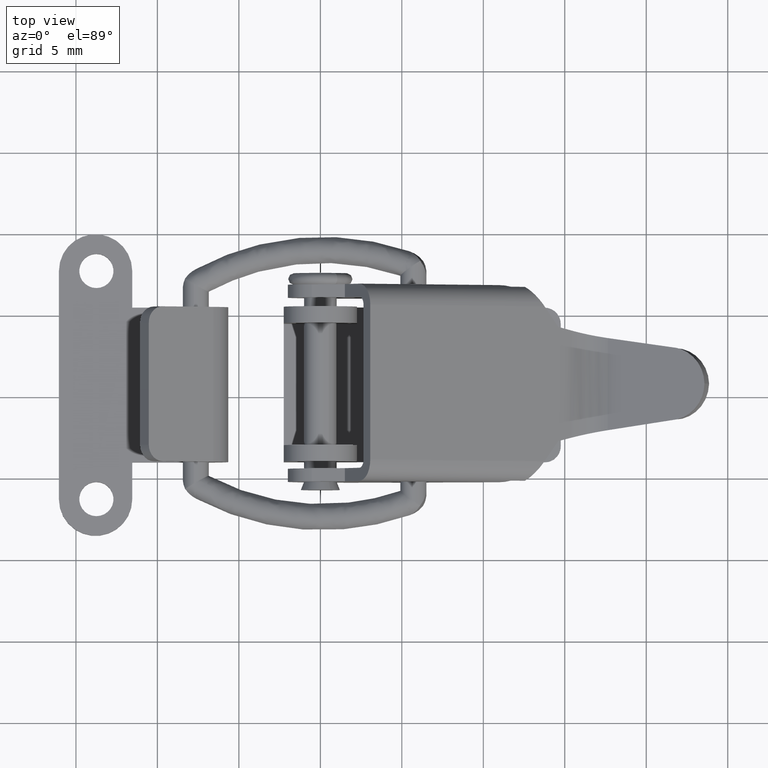
[diagram: clean part render]
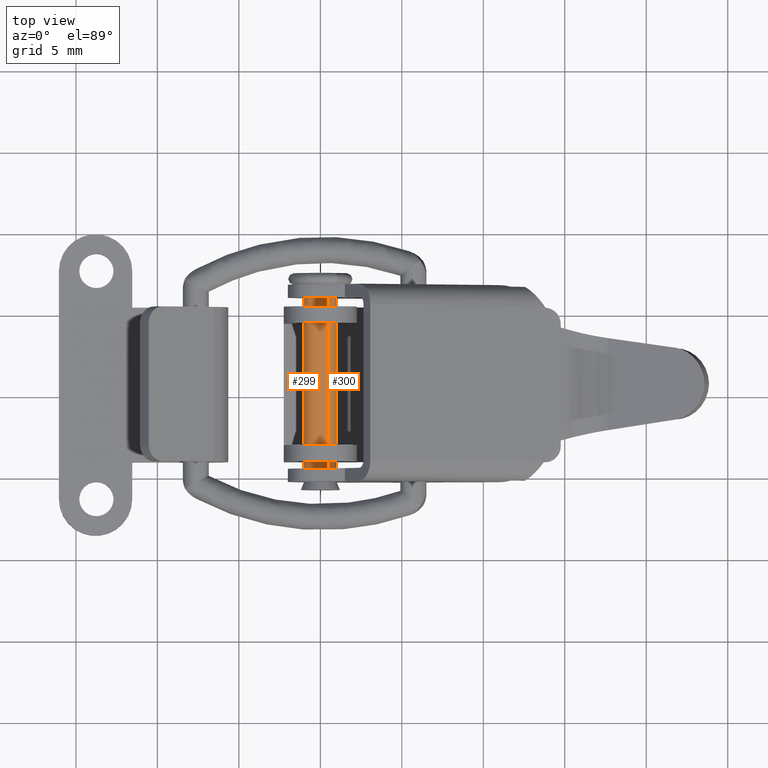
[diagram: same view with one multi-face feature highlighted, each face labeled with its STEP entity id]
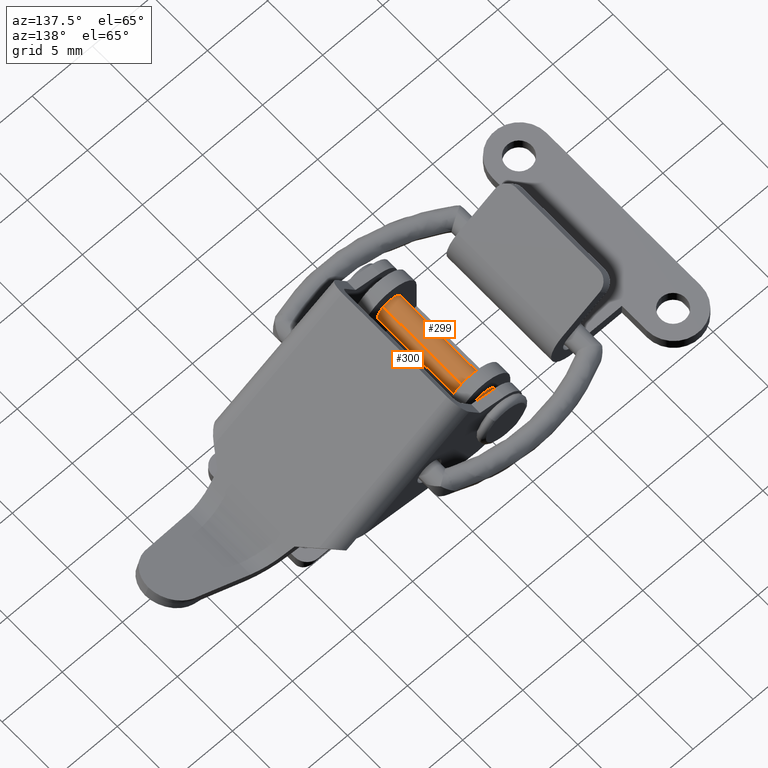
[diagram: same view with one multi-face feature highlighted, each face labeled with its STEP entity id]
A machine part, top view. The highlighted faces form ONE feature: a constant-radius fillet chain: 2 tangent blend faces with common blend radius 1 mm. The faces share edges in the B-rep.
A second angle (auxiliary view) of the same feature is appended — it is thin or edge-on in the first view.
Their STEP definitions:
[1] entity #300 (Cylinder):
#300=ADVANCED_FACE('',(#1463),#1462,.T.);
#1462=CYLINDRICAL_SURFACE('',#2220,1.00000000000E+00);
#1463=FACE_OUTER_BOUND('',#2221,.T.);
#2217=CARTESIAN_POINT('',(0.00000000000E+00,-3.34267336033E-13,-5.90041390048E+00));
#2218=DIRECTION('',(-0.00000000000E+00,1.00000000000E+00,-0.00000000000E+00));
#2219=DIRECTION('',(0.00000000000E+00,0.00000000000E+00,-1.00000000000E+00));
#2220=AXIS2_PLACEMENT_3D('',#2217,#2218,#2219);
#2221=EDGE_LOOP('',(#2836,#2837,#2838,#2839));
#2836=ORIENTED_EDGE('',*,*,#3142,.F.);
#2837=ORIENTED_EDGE('',*,*,#3147,.T.);
#2838=ORIENTED_EDGE('',*,*,#3120,.T.);
#2839=ORIENTED_EDGE('',*,*,#3148,.F.);
#3120=EDGE_CURVE('',#5025,#5026,#5027,.T.);
#3142=EDGE_CURVE('',#5158,#5165,#5166,.T.);
#3147=EDGE_CURVE('',#5158,#5025,#5196,.T.);
#3148=EDGE_CURVE('',#5165,#5026,#5202,.T.);
#5025=VERTEX_POINT('',#6446);
#5026=VERTEX_POINT('',#6447);
#5027=CIRCLE('',#6451,1.00000000000E+00);
#5158=VERTEX_POINT('',#6514);
#5165=VERTEX_POINT('',#6517);
#5166=CIRCLE('',#6521,1.00000000000E+00);
#5196=(BOUNDED_CURVE() B_SPLINE_CURVE(1,(#6538,#6539),.UNSPECIFIED.,.F.,.F.) B_SPLINE_CURVE_WITH_KNOTS((2,2),(8.33333343261E-02,9.16666667006E-01),.UNSPECIFIED.) CURVE() GEOMETRIC_REPRESENTATION_ITEM() RATIONAL_B_SPLINE_CURVE((1.00000000000E+00,1.00000000000E+00)) REPRESENTATION_ITEM('') );
#5202=(BOUNDED_CURVE() B_SPLINE_CURVE(1,(#6540,#6541),.UNSPECIFIED.,.F.,.F.) B_SPLINE_CURVE_WITH_KNOTS((2,2),(8.33333333333E-02,9.16666666667E-01),.UNSPECIFIED.) CURVE() GEOMETRIC_REPRESENTATION_ITEM() RATIONAL_B_SPLINE_CURVE((7.50000000000E-01,7.50000000000E-01)) REPRESENTATION_ITEM('') );
#6446=CARTESIAN_POINT('',(-1.11022302463E-16,6.05000000000E+00,-6.90041390048E+00));
#6447=CARTESIAN_POINT('',(0.00000000000E+00,6.05000000000E+00,-4.90041390048E+00));
#6448=CARTESIAN_POINT('',(0.00000000000E+00,6.05000000000E+00,-5.90041390048E+00));
#6449=DIRECTION('',(0.00000000000E+00,-1.00000000000E+00,0.00000000000E+00));
#6450=DIRECTION('',(1.22460635382E-16,0.00000000000E+00,1.00000000000E+00));
#6451=AXIS2_PLACEMENT_3D('',#6448,#6449,#6450);
#6514=CARTESIAN_POINT('',(-1.11022302463E-16,-6.05000000000E+00,-6.90041390048E+00));
#6517=CARTESIAN_POINT('',(0.00000000000E+00,-6.05000000000E+00,-4.90041390048E+00));
#6518=CARTESIAN_POINT('',(0.00000000000E+00,-6.05000000000E+00,-5.90041390048E+00));
#6519=DIRECTION('',(0.00000000000E+00,-1.00000000000E+00,0.00000000000E+00));
#6520=DIRECTION('',(1.22460635382E-16,0.00000000000E+00,1.00000000000E+00));
#6521=AXIS2_PLACEMENT_3D('',#6518,#6519,#6520);
#6538=CARTESIAN_POINT('',(0.00000000000E+00,-6.04999998559E+00,-6.90041390048E+00));
#6539=CARTESIAN_POINT('',(0.00000000000E+00,6.05000000493E+00,-6.90041390048E+00));
#6540=CARTESIAN_POINT('',(3.70074341542E-17,-6.05000000000E+00,-4.90041390048E+00));
#6541=CARTESIAN_POINT('',(3.70074341542E-17,6.05000000000E+00,-4.90041390048E+00));
[2] entity #299 (Cylinder):
#299=ADVANCED_FACE('',(#1453),#1452,.T.);
#1452=CYLINDRICAL_SURFACE('',#2215,1.00000000000E+00);
#1453=FACE_OUTER_BOUND('',#2216,.T.);
#2212=CARTESIAN_POINT('',(0.00000000000E+00,-3.34267336033E-13,-5.90041390048E+00));
#2213=DIRECTION('',(-0.00000000000E+00,1.00000000000E+00,-0.00000000000E+00));
#2214=DIRECTION('',(0.00000000000E+00,0.00000000000E+00,-1.00000000000E+00));
#2215=AXIS2_PLACEMENT_3D('',#2212,#2213,#2214);
#2216=EDGE_LOOP('',(#2832,#2833,#2834,#2835));
#2832=ORIENTED_EDGE('',*,*,#3121,.T.);
#2833=ORIENTED_EDGE('',*,*,#3147,.F.);
#2834=ORIENTED_EDGE('',*,*,#3144,.F.);
#2835=ORIENTED_EDGE('',*,*,#3148,.T.);
#3121=EDGE_CURVE('',#5026,#5025,#5033,.T.);
#3144=EDGE_CURVE('',#5165,#5158,#5178,.T.);
#3147=EDGE_CURVE('',#5158,#5025,#5196,.T.);
#3148=EDGE_CURVE('',#5165,#5026,#5202,.T.);
#5025=VERTEX_POINT('',#6446);
#5026=VERTEX_POINT('',#6447);
#5033=CIRCLE('',#6455,1.00000000000E+00);
#5158=VERTEX_POINT('',#6514);
#5165=VERTEX_POINT('',#6517);
#5178=CIRCLE('',#6527,1.00000000000E+00);
#5196=(BOUNDED_CURVE() B_SPLINE_CURVE(1,(#6538,#6539),.UNSPECIFIED.,.F.,.F.) B_SPLINE_CURVE_WITH_KNOTS((2,2),(8.33333343261E-02,9.16666667006E-01),.UNSPECIFIED.) CURVE() GEOMETRIC_REPRESENTATION_ITEM() RATIONAL_B_SPLINE_CURVE((1.00000000000E+00,1.00000000000E+00)) REPRESENTATION_ITEM('') );
#5202=(BOUNDED_CURVE() B_SPLINE_CURVE(1,(#6540,#6541),.UNSPECIFIED.,.F.,.F.) B_SPLINE_CURVE_WITH_KNOTS((2,2),(8.33333333333E-02,9.16666666667E-01),.UNSPECIFIED.) CURVE() GEOMETRIC_REPRESENTATION_ITEM() RATIONAL_B_SPLINE_CURVE((7.50000000000E-01,7.50000000000E-01)) REPRESENTATION_ITEM('') );
#6446=CARTESIAN_POINT('',(-1.11022302463E-16,6.05000000000E+00,-6.90041390048E+00));
#6447=CARTESIAN_POINT('',(0.00000000000E+00,6.05000000000E+00,-4.90041390048E+00));
#6452=CARTESIAN_POINT('',(0.00000000000E+00,6.05000000000E+00,-5.90041390048E+00));
#6453=DIRECTION('',(0.00000000000E+00,-1.00000000000E+00,0.00000000000E+00));
#6454=DIRECTION('',(1.22460635382E-16,0.00000000000E+00,1.00000000000E+00));
#6455=AXIS2_PLACEMENT_3D('',#6452,#6453,#6454);
#6514=CARTESIAN_POINT('',(-1.11022302463E-16,-6.05000000000E+00,-6.90041390048E+00));
#6517=CARTESIAN_POINT('',(0.00000000000E+00,-6.05000000000E+00,-4.90041390048E+00));
#6524=CARTESIAN_POINT('',(0.00000000000E+00,-6.05000000000E+00,-5.90041390048E+00));
#6525=DIRECTION('',(0.00000000000E+00,-1.00000000000E+00,0.00000000000E+00));
#6526=DIRECTION('',(1.22460635382E-16,0.00000000000E+00,1.00000000000E+00));
#6527=AXIS2_PLACEMENT_3D('',#6524,#6525,#6526);
#6538=CARTESIAN_POINT('',(0.00000000000E+00,-6.04999998559E+00,-6.90041390048E+00));
#6539=CARTESIAN_POINT('',(0.00000000000E+00,6.05000000493E+00,-6.90041390048E+00));
#6540=CARTESIAN_POINT('',(3.70074341542E-17,-6.05000000000E+00,-4.90041390048E+00));
#6541=CARTESIAN_POINT('',(3.70074341542E-17,6.05000000000E+00,-4.90041390048E+00));